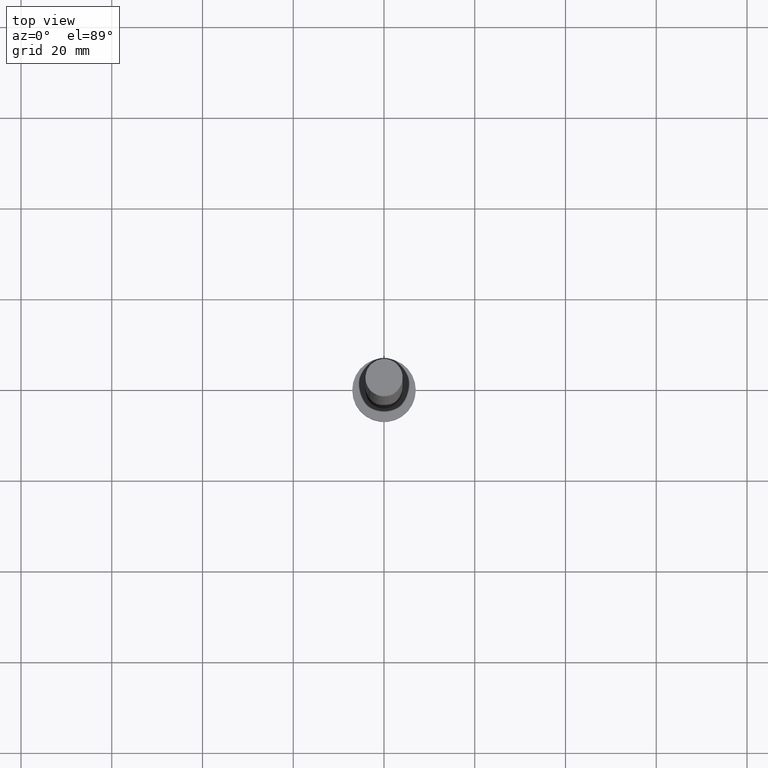
[diagram: clean part render]
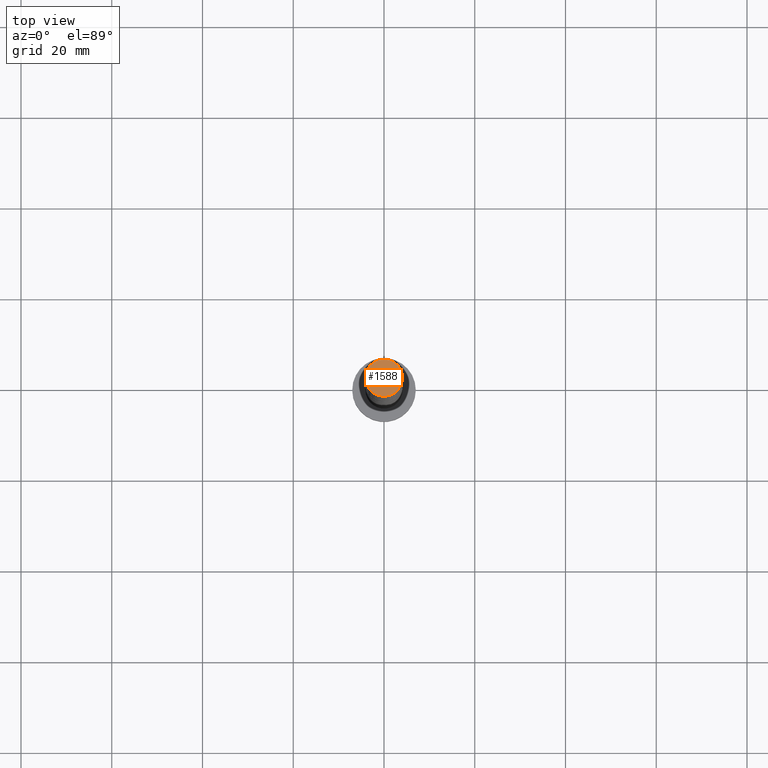
[diagram: same view with one face highlighted and labeled with its STEP entity id]
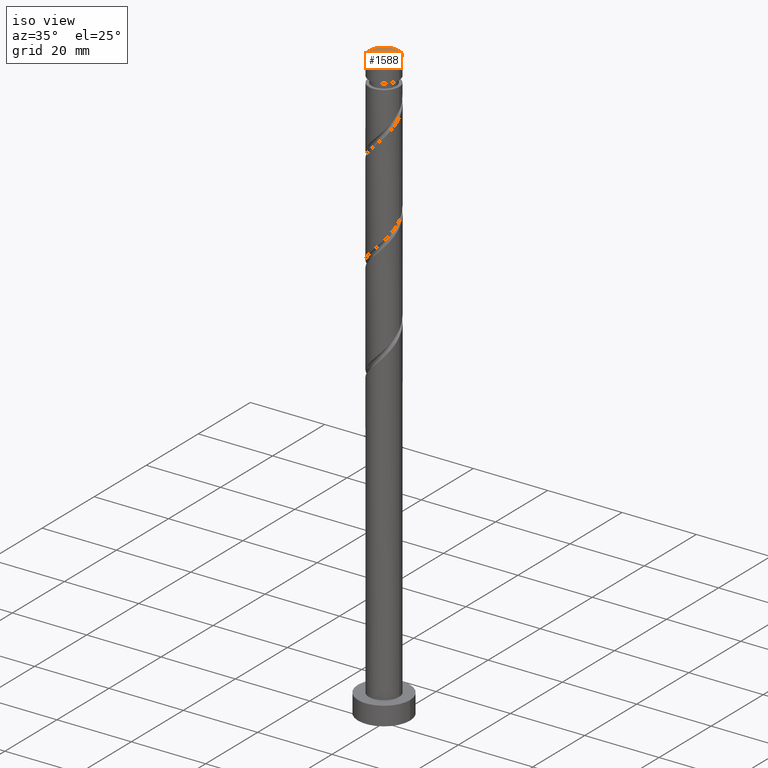
[diagram: same view with one face highlighted and labeled with its STEP entity id]
A machine part, top view. The second image highlights one B-rep face of the part: STEP entity #1588.
A second angle (iso view) of the same face is appended — the face is thin or edge-on in the first view.
In plain terms, the highlighted planar face has unit normal (0, 0, 1).
Its self-contained STEP definition (entity closure, byte-faithful):
#77 = CIRCLE ( 'NONE', #1579, 4.099999999999999645 ) ;
#110 = FACE_OUTER_BOUND ( 'NONE', #1538, .T. ) ;
#121 = PLANE ( 'NONE',  #824 ) ;
#159 = AXIS2_PLACEMENT_3D ( 'NONE', #1106, #696, #1091 ) ;
#250 = CARTESIAN_POINT ( 'NONE',  ( 0.000000000000000000, 0.000000000000000000, 160.0000000000000000 ) ) ;
#266 = DIRECTION ( 'NONE',  ( 1.000000000000000000, 0.000000000000000000, -0.000000000000000000 ) ) ;
#379 = CARTESIAN_POINT ( 'NONE',  ( -4.099999999999999645, 0.000000000000000000, 160.0000000000000000 ) ) ;
#515 = DIRECTION ( 'NONE',  ( 1.000000000000000000, 0.000000000000000000, 0.000000000000000000 ) ) ;
#540 = VERTEX_POINT ( 'NONE', #1108 ) ;
#696 = DIRECTION ( 'NONE',  ( 0.000000000000000000, 0.000000000000000000, 1.000000000000000000 ) ) ;
#752 = DIRECTION ( 'NONE',  ( 0.000000000000000000, 0.000000000000000000, 1.000000000000000000 ) ) ;
#778 = CARTESIAN_POINT ( 'NONE',  ( 0.000000000000000000, 0.000000000000000000, 160.0000000000000000 ) ) ;
#824 = AXIS2_PLACEMENT_3D ( 'NONE', #778, #1026, #266 ) ;
#834 = EDGE_CURVE ( 'NONE', #540, #1426, #77, .T. ) ;
#1026 = DIRECTION ( 'NONE',  ( 0.000000000000000000, 0.000000000000000000, 1.000000000000000000 ) ) ;
#1063 = CIRCLE ( 'NONE', #159, 4.099999999999999645 ) ;
#1091 = DIRECTION ( 'NONE',  ( 1.000000000000000000, 0.000000000000000000, 0.000000000000000000 ) ) ;
#1106 = CARTESIAN_POINT ( 'NONE',  ( 0.000000000000000000, 0.000000000000000000, 160.0000000000000000 ) ) ;
#1108 = CARTESIAN_POINT ( 'NONE',  ( 4.099999999999999645, 5.021051876504147385E-16, 160.0000000000000000 ) ) ;
#1123 = EDGE_CURVE ( 'NONE', #1426, #540, #1063, .T. ) ;
#1175 = ORIENTED_EDGE ( 'NONE', *, *, #1123, .T. ) ;
#1339 = ORIENTED_EDGE ( 'NONE', *, *, #834, .T. ) ;
#1426 = VERTEX_POINT ( 'NONE', #379 ) ;
#1538 = EDGE_LOOP ( 'NONE', ( #1175, #1339 ) ) ;
#1579 = AXIS2_PLACEMENT_3D ( 'NONE', #250, #752, #515 ) ;
#1588 = ADVANCED_FACE ( 'NONE', ( #110 ), #121, .T. ) ;